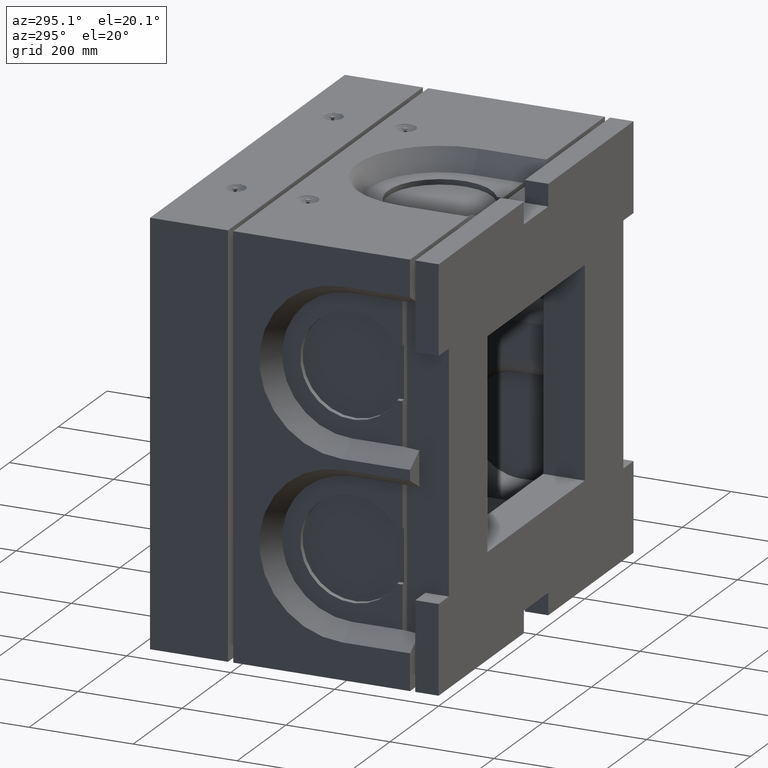
[diagram: clean part render]
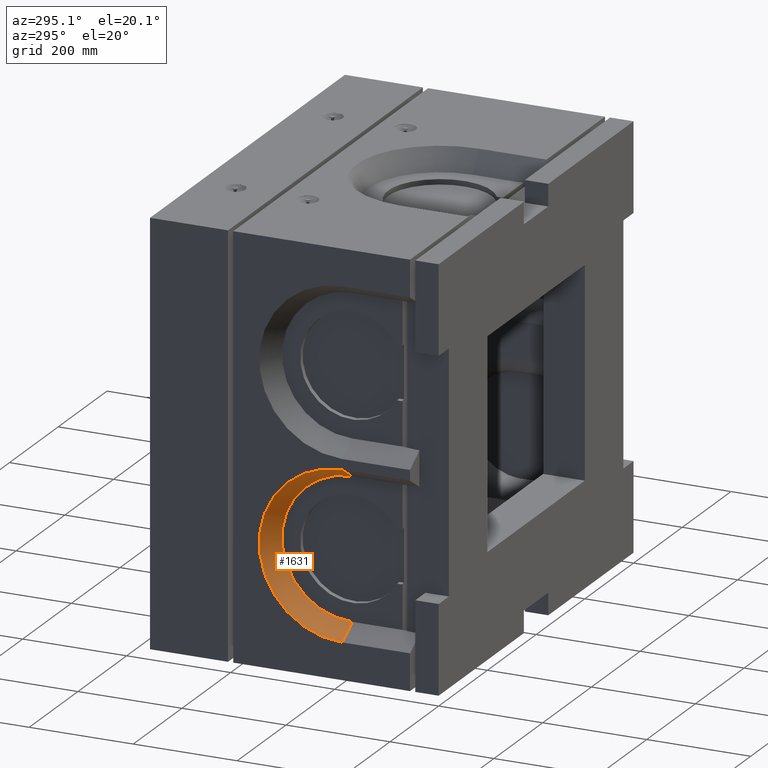
[diagram: same view with one face highlighted and labeled with its STEP entity id]
A machine part, auxiliary view. The second image highlights one B-rep face of the part: STEP entity #1631.
In plain terms, the highlighted conical surface has half-angle 32 deg.
Its self-contained STEP definition (entity closure, byte-faithful):
#626 = CARTESIAN_POINT ( 'NONE',  ( -399.9999999999999432, 185.0000000000000284, -10.00000000000000888 ) ) ;
#660 = VERTEX_POINT ( 'NONE', #19428 ) ;
#1132 = VECTOR ( 'NONE', #6629, 1000.000000000000114 ) ;
#1447 = EDGE_CURVE ( 'NONE', #25500, #660, #11085, .T. ) ;
#1494 = DIRECTION ( 'NONE',  ( 0.0000000000000000000, 0.0000000000000000000, 1.000000000000000000 ) ) ;
#1631 = ADVANCED_FACE ( 'NONE', ( #20936 ), #12327, .F. ) ;
#3190 = CARTESIAN_POINT ( 'NONE',  ( -399.9999999999999432, 185.0000000000000284, -9.999999999999953815 ) ) ;
#3271 = DIRECTION ( 'NONE',  ( 0.0000000000000000000, 0.0000000000000000000, 1.000000000000000000 ) ) ;
#3353 = CARTESIAN_POINT ( 'NONE',  ( -399.9999999999999432, 185.0000000000000000, -169.9999999999999716 ) ) ;
#4155 = ORIENTED_EDGE ( 'NONE', *, *, #14040, .F. ) ;
#4420 = CARTESIAN_POINT ( 'NONE',  ( -399.9999999999999432, 185.0000000000000000, -169.9999999999999716 ) ) ;
#5097 = DIRECTION ( 'NONE',  ( -1.000000000000000000, 0.0000000000000000000, 0.0000000000000000000 ) ) ;
#5356 = ORIENTED_EDGE ( 'NONE', *, *, #18039, .T. ) ;
#5544 = EDGE_CURVE ( 'NONE', #25500, #18751, #22117, .T. ) ;
#5691 = CIRCLE ( 'NONE', #14946, 160.0000000000000000 ) ;
#6629 = DIRECTION ( 'NONE',  ( -0.8480480961564252906, 1.176657136688255025E-16, 0.5299192642332060110 ) ) ;
#7345 = DIRECTION ( 'NONE',  ( -1.000000000000000000, -0.0000000000000000000, 0.0000000000000000000 ) ) ;
#7875 = ORIENTED_EDGE ( 'NONE', *, *, #1447, .F. ) ;
#8398 = LINE ( 'NONE', #24827, #10903 ) ;
#10718 = CARTESIAN_POINT ( 'NONE',  ( -359.9999999999999432, 185.0000000000000284, -34.99477407637319004 ) ) ;
#10903 = VECTOR ( 'NONE', #22855, 1000.000000000000114 ) ;
#11085 = CIRCLE ( 'NONE', #14312, 135.0052259236268242 ) ;
#12327 = CONICAL_SURFACE ( 'NONE', #22447, 160.0000000000000000, 0.5585053606381866764 ) ;
#13972 = DIRECTION ( 'NONE',  ( 0.0000000000000000000, 0.0000000000000000000, 1.000000000000000000 ) ) ;
#14040 = EDGE_CURVE ( 'NONE', #660, #14771, #8398, .T. ) ;
#14312 = AXIS2_PLACEMENT_3D ( 'NONE', #24583, #5097, #3271 ) ;
#14771 = VERTEX_POINT ( 'NONE', #25485 ) ;
#14946 = AXIS2_PLACEMENT_3D ( 'NONE', #4420, #23942, #13972 ) ;
#16573 = ORIENTED_EDGE ( 'NONE', *, *, #5544, .T. ) ;
#18039 = EDGE_CURVE ( 'NONE', #18751, #14771, #5691, .T. ) ;
#18751 = VERTEX_POINT ( 'NONE', #3190 ) ;
#19428 = CARTESIAN_POINT ( 'NONE',  ( -359.9999999999999432, 185.0000000000000284, -305.0052259236268242 ) ) ;
#20936 = FACE_OUTER_BOUND ( 'NONE', #23384, .T. ) ;
#22117 = LINE ( 'NONE', #626, #1132 ) ;
#22447 = AXIS2_PLACEMENT_3D ( 'NONE', #3353, #7345, #1494 ) ;
#22855 = DIRECTION ( 'NONE',  ( -0.8480480961564252906, 9.192633880376989613E-17, -0.5299192642332060110 ) ) ;
#23384 = EDGE_LOOP ( 'NONE', ( #5356, #4155, #7875, #16573 ) ) ;
#23942 = DIRECTION ( 'NONE',  ( -1.000000000000000000, 0.0000000000000000000, 0.0000000000000000000 ) ) ;
#24583 = CARTESIAN_POINT ( 'NONE',  ( -359.9999999999999432, 185.0000000000000000, -169.9999999999999716 ) ) ;
#24827 = CARTESIAN_POINT ( 'NONE',  ( -399.9999999999999432, 185.0000000000000284, -330.0000000000000000 ) ) ;
#25485 = CARTESIAN_POINT ( 'NONE',  ( -399.9999999999999432, 184.9999999999999716, -330.0000000000000000 ) ) ;
#25500 = VERTEX_POINT ( 'NONE', #10718 ) ;